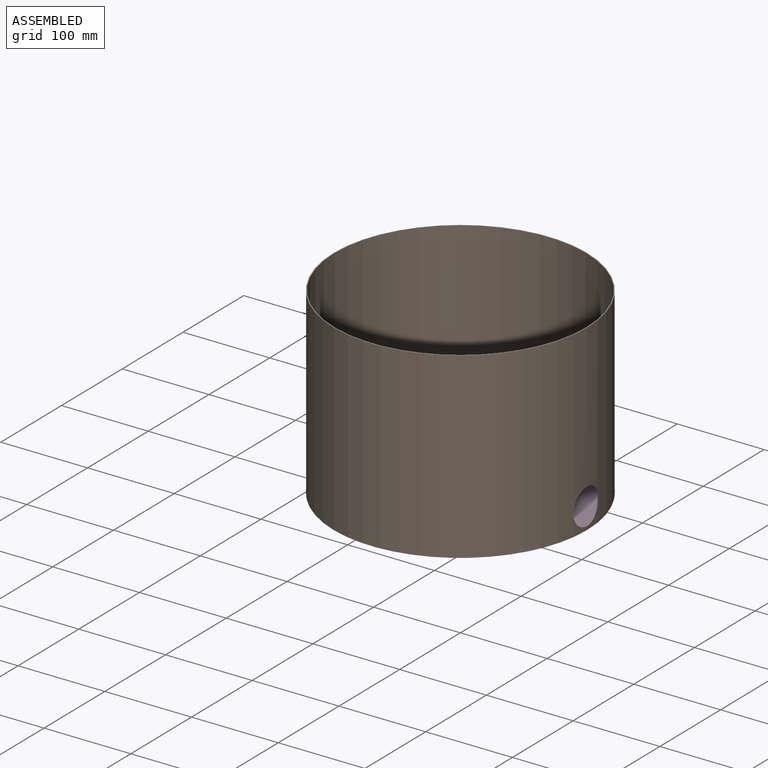
[diagram: assembled view]
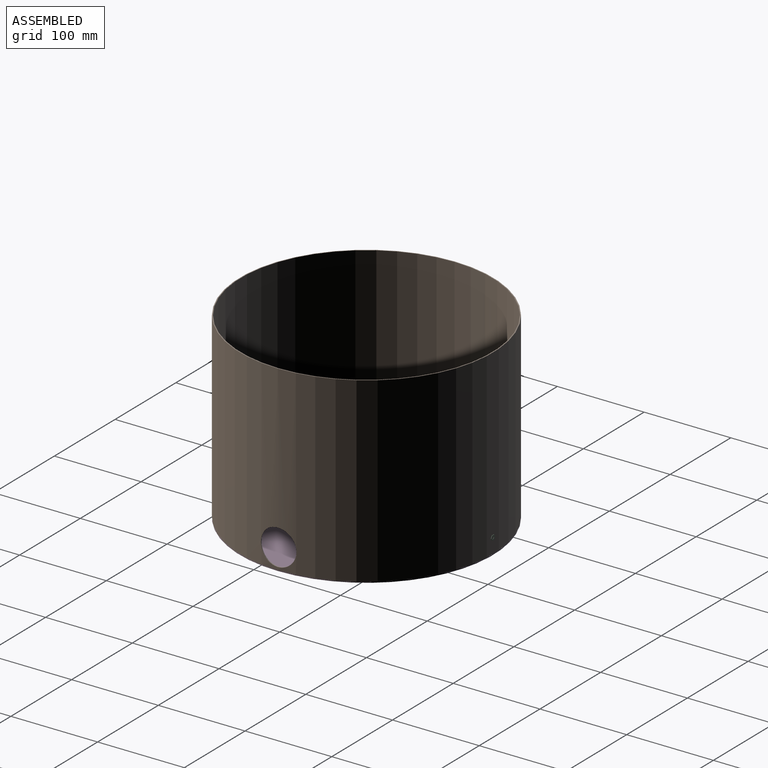
[diagram: assembled view, second angle]
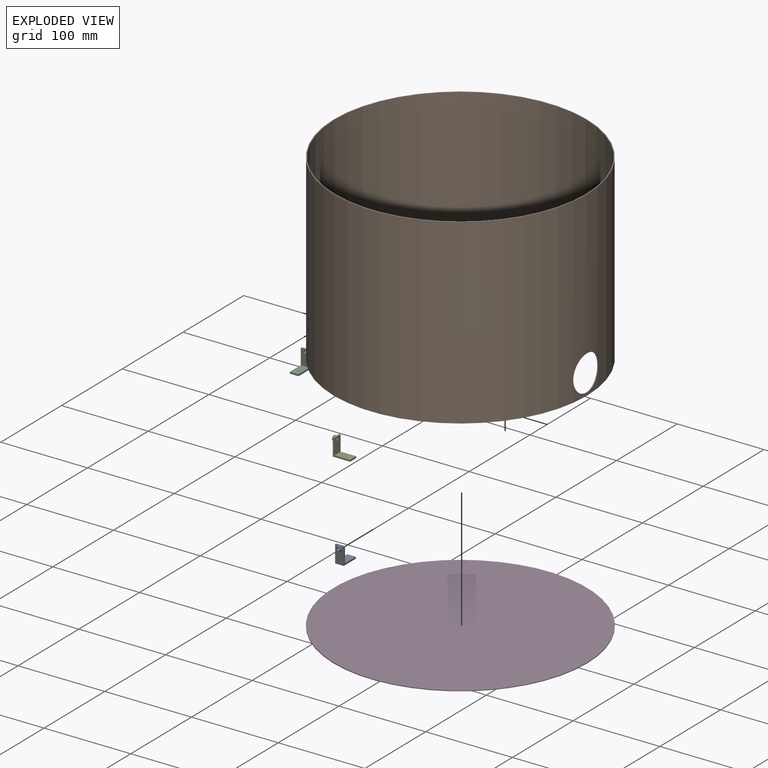
[diagram: exploded view]
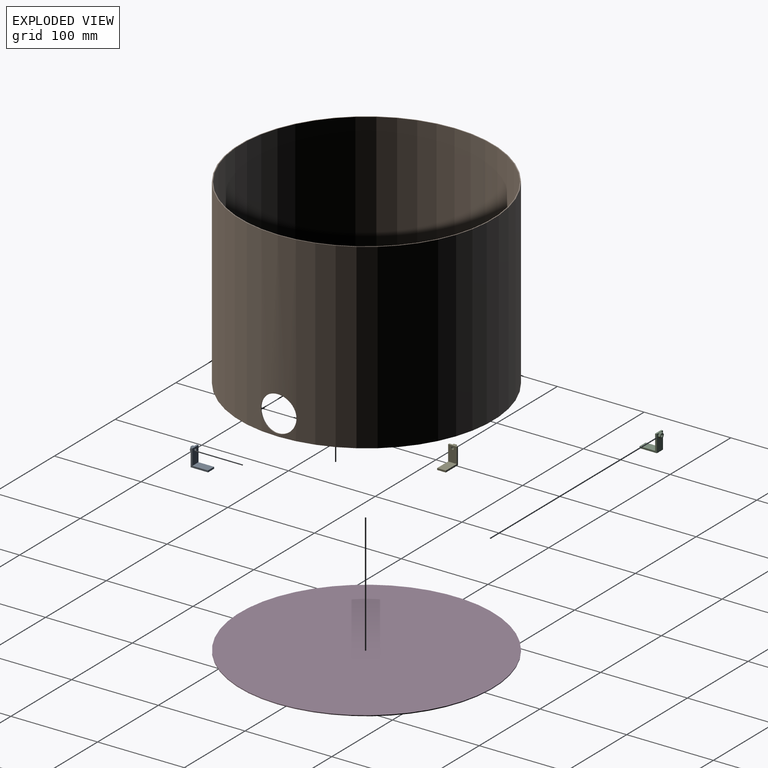
[diagram: exploded view, second angle]
ASSEMBLY  parts=5 mates=4
PART A: 16 faces, bbox 10x22.4x20 mm
  f0: plane 20x10mm, normal (0,1,0), area 173.8mm2, adj f2,f3,f4,f5,f9,f10,f11,f12
  f1: plane 18x10mm, normal (0,-1,0), area 172.9mm2, adj f2,f3,f5,f6,f7
  f2: plane 10x2mm, normal (0,0,1), area 20mm2, adj f0,f1,f3,f5
  f3: plane 20x20mm, normal (-1,0,0), area 76mm2, adj f0,f1,f2,f4,f7,f8
  f4: plane 20x10mm, normal (0,0,-1), area 200mm2, adj f0,f3,f5,f8
  f5: plane 20x20mm, normal (1,0,0), area 76mm2, adj f0,f1,f2,f4,f7,f8
  f6: cylinder r=1.5mm len=4.4mm, axis (0,1,0), area 41.5mm2, adj f1,f15
  f7: plane 18x10mm, normal (0,0,1), area 180mm2, adj f1,f3,f5,f8
  f8: plane 10x2mm, normal (0,-1,0), area 20mm2, adj f3,f4,f5,f7
  f9: plane 2.73x2.4mm, normal (-0.86,0,0.51), area 7.6mm2, adj f0,f10,f14,f15
  f10: plane 2.77x2.4mm, normal (-0.87,0,-0.49), area 7.6mm2, adj f0,f9,f11,f15
  f11: plane 3.18x2.4mm, normal (-0.01,0,-1), area 7.6mm2, adj f0,f10,f12,f15
  f12: plane 2.73x2.4mm, normal (0.86,0,-0.51), area 7.6mm2, adj f0,f11,f13,f15
  f13: plane 2.77x2.4mm, normal (0.87,0,0.49), area 7.6mm2, adj f0,f12,f14,f15
  f14: plane 3.18x2.4mm, normal (0.01,0,1), area 7.6mm2, adj f0,f9,f13,f15
  f15: plane 6.35x5.54mm, normal (0,1,0), area 19.1mm2, adj f6,f9,f10,f11,f12,f13,f14
PART B: 5 faces, bbox 292x292x210 mm
  f0: cylinder r=146mm len=292mm, axis (0,0,-1), area 191319.1mm2, adj f2,f3,f4
  f1: cylinder r=145mm len=290mm, axis (0,0,-1), area 189999.6mm2, adj f2,f3,f4
  f2: plane 292x292mm, normal (0,0,1), area 914.2mm2, adj f0,f1
  f3: plane 292x292mm, normal (0,0,-1), area 914.2mm2, adj f0,f1
  f4: cylinder r=20.5mm len=41mm, axis (-1,0,0), area 129.5mm2, adj f0,f1
PART C: same geometry as A
PART D: 3 faces, bbox 292x292x1 mm
  f0: cylinder r=146mm len=292mm, axis (0,0,1), area 917.3mm2, adj f1,f2
  f1: plane 292x292mm, normal (0,0,-1), area 66966.2mm2, adj f0
  f2: plane 292x292mm, normal (0,0,1), area 66966.2mm2, adj f0
PART E: same geometry as A
PLACE A rot(axis=(0,0,1),180deg) t=(-3.03,-143.6,109.05)mm
PLACE B t=(0,0,121)mm
PLACE C t=(3.03,143.6,109.05)mm
PLACE D t=(0,0,121)mm
PLACE E rot(axis=(0,0,1),90deg) t=(-143.6,3.03,109.05)mm
MATE fastened E.f4 <-> D.f2  axis (0,0,-1) through (-123.6,5,121)mm
MATE fastened A.f4 <-> D.f2  axis (0,0,-1) through (-5,-123.6,121)mm
MATE fastened C.f4 <-> D.f2  axis (0,0,-1) through (5,123.6,121)mm
MATE fastened D.f0 <-> B.f1  axis (0,0,1) through (0,0,121)mm
